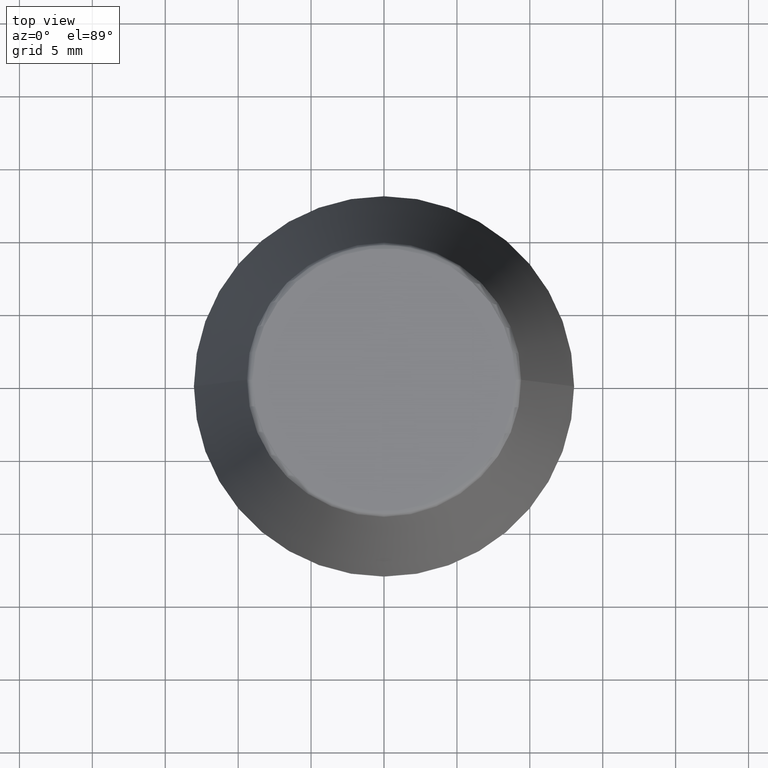
[diagram: clean part render]
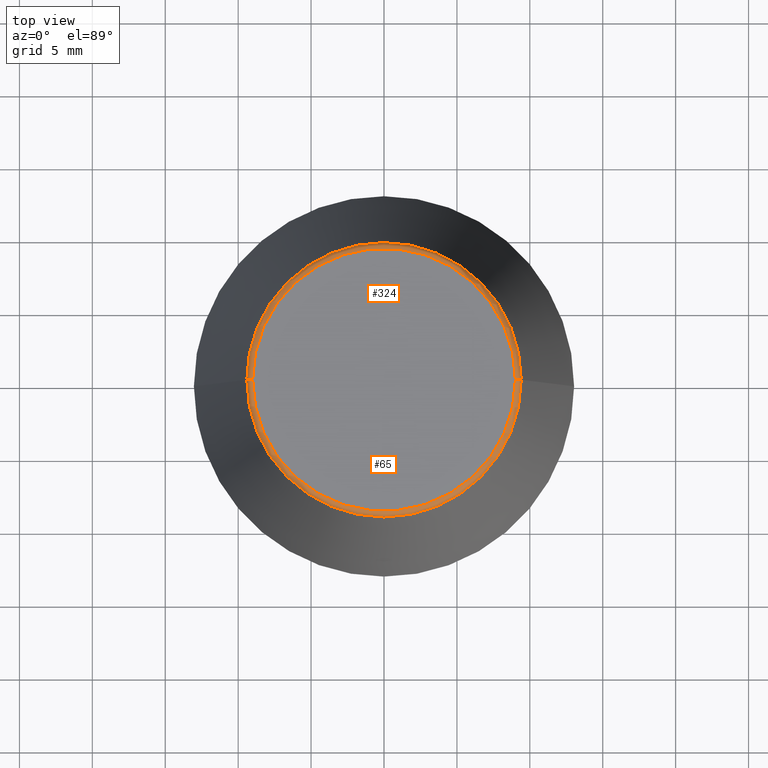
[diagram: same view with one multi-face feature highlighted, each face labeled with its STEP entity id]
A machine part, top view. The highlighted faces form ONE feature: a constant-radius fillet chain: 2 tangent blend faces with common blend radius 0.4 mm. The faces share edges in the B-rep.
Their STEP definitions:
[1] entity #65 (Torus):
#12 = AXIS2_PLACEMENT_3D ( 'NONE', #60, #238, #49 ) ;
#15 = DIRECTION ( 'NONE',  ( 1.000000000000000000, 0.0000000000000000000, 0.0000000000000000000 ) ) ;
#18 = CARTESIAN_POINT ( 'NONE',  ( 9.012603057622234500, 0.0000000000000000000, 33.60000000000000100 ) ) ;
#40 = DIRECTION ( 'NONE',  ( 0.0000000000000000000, 0.0000000000000000000, -1.000000000000000000 ) ) ;
#41 = TOROIDAL_SURFACE ( 'NONE', #184, 9.012603057622234500, 0.4000000000000009700 ) ;
#49 = DIRECTION ( 'NONE',  ( 1.000000000000000000, 0.0000000000000000000, 0.0000000000000000000 ) ) ;
#51 = VERTEX_POINT ( 'NONE', #173 ) ;
#60 = CARTESIAN_POINT ( 'NONE',  ( 0.0000000000000000000, 0.0000000000000000000, 33.65566924038402900 ) ) ;
#65 = ADVANCED_FACE ( 'NONE', ( #91 ), #41, .T. ) ;
#75 = VERTEX_POINT ( 'NONE', #231 ) ;
#79 = VERTEX_POINT ( 'NONE', #140 ) ;
#91 = FACE_OUTER_BOUND ( 'NONE', #236, .T. ) ;
#93 = DIRECTION ( 'NONE',  ( -0.0000000000000000000, -0.0000000000000000000, 1.000000000000000000 ) ) ;
#108 = DIRECTION ( 'NONE',  ( 0.0000000000000000000, -1.000000000000000000, 0.0000000000000000000 ) ) ;
#113 = CARTESIAN_POINT ( 'NONE',  ( 0.0000000000000000000, 0.0000000000000000000, 33.60000000000000100 ) ) ;
#123 = DIRECTION ( 'NONE',  ( 1.000000000000000000, 0.0000000000000000000, 0.0000000000000000000 ) ) ;
#135 = EDGE_CURVE ( 'NONE', #79, #256, #239, .T. ) ;
#140 = CARTESIAN_POINT ( 'NONE',  ( -9.408710285118862900, 0.0000000000000000000, 33.65566924038402900 ) ) ;
#149 = CIRCLE ( 'NONE', #222, 0.3999999999999975800 ) ;
#158 = DIRECTION ( 'NONE',  ( -1.000000000000000000, 1.224646799147353200E-016, 0.0000000000000000000 ) ) ;
#173 = CARTESIAN_POINT ( 'NONE',  ( -9.012603057622234500, 1.127980121063915600E-015, 34.00000000000000000 ) ) ;
#184 = AXIS2_PLACEMENT_3D ( 'NONE', #113, #377, #15 ) ;
#185 = CARTESIAN_POINT ( 'NONE',  ( -9.012603057622234500, 1.103725548650271700E-015, 33.60000000000000100 ) ) ;
#222 = AXIS2_PLACEMENT_3D ( 'NONE', #18, #108, #40 ) ;
#228 = ORIENTED_EDGE ( 'NONE', *, *, #135, .T. ) ;
#231 = CARTESIAN_POINT ( 'NONE',  ( 9.012603057622234500, 0.0000000000000000000, 34.00000000000000000 ) ) ;
#236 = EDGE_LOOP ( 'NONE', ( #312, #228, #286, #303 ) ) ;
#238 = DIRECTION ( 'NONE',  ( -0.0000000000000000000, -0.0000000000000000000, 1.000000000000000000 ) ) ;
#239 = CIRCLE ( 'NONE', #12, 9.408710285118862900 ) ;
#248 = AXIS2_PLACEMENT_3D ( 'NONE', #300, #93, #123 ) ;
#256 = VERTEX_POINT ( 'NONE', #379 ) ;
#260 = EDGE_CURVE ( 'NONE', #256, #75, #149, .T. ) ;
#264 = CIRCLE ( 'NONE', #358, 0.4000000000000010200 ) ;
#286 = ORIENTED_EDGE ( 'NONE', *, *, #260, .T. ) ;
#300 = CARTESIAN_POINT ( 'NONE',  ( 0.0000000000000000000, 0.0000000000000000000, 34.00000000000000000 ) ) ;
#303 = ORIENTED_EDGE ( 'NONE', *, *, #322, .F. ) ;
#312 = ORIENTED_EDGE ( 'NONE', *, *, #369, .F. ) ;
#320 = CIRCLE ( 'NONE', #248, 9.012603057622234500 ) ;
#322 = EDGE_CURVE ( 'NONE', #51, #75, #320, .T. ) ;
#358 = AXIS2_PLACEMENT_3D ( 'NONE', #185, #363, #158 ) ;
#363 = DIRECTION ( 'NONE',  ( 1.224646799147353200E-016, 1.000000000000000000, 0.0000000000000000000 ) ) ;
#369 = EDGE_CURVE ( 'NONE', #79, #51, #264, .T. ) ;
#377 = DIRECTION ( 'NONE',  ( -0.0000000000000000000, -0.0000000000000000000, 1.000000000000000000 ) ) ;
#379 = CARTESIAN_POINT ( 'NONE',  ( 9.408710285118862900, 1.374377508408924700E-015, 33.65566924038402900 ) ) ;
[2] entity #324 (Torus):
#13 = TOROIDAL_SURFACE ( 'NONE', #44, 9.012603057622234500, 0.4000000000000009700 ) ;
#14 = DIRECTION ( 'NONE',  ( -0.0000000000000000000, -0.0000000000000000000, 1.000000000000000000 ) ) ;
#18 = CARTESIAN_POINT ( 'NONE',  ( 9.012603057622234500, 0.0000000000000000000, 33.60000000000000100 ) ) ;
#35 = DIRECTION ( 'NONE',  ( -0.0000000000000000000, -0.0000000000000000000, 1.000000000000000000 ) ) ;
#40 = DIRECTION ( 'NONE',  ( 0.0000000000000000000, 0.0000000000000000000, -1.000000000000000000 ) ) ;
#44 = AXIS2_PLACEMENT_3D ( 'NONE', #331, #14, #242 ) ;
#51 = VERTEX_POINT ( 'NONE', #173 ) ;
#58 = DIRECTION ( 'NONE',  ( 1.000000000000000000, 0.0000000000000000000, 0.0000000000000000000 ) ) ;
#75 = VERTEX_POINT ( 'NONE', #231 ) ;
#79 = VERTEX_POINT ( 'NONE', #140 ) ;
#106 = CARTESIAN_POINT ( 'NONE',  ( 0.0000000000000000000, 0.0000000000000000000, 33.65566924038402900 ) ) ;
#108 = DIRECTION ( 'NONE',  ( 0.0000000000000000000, -1.000000000000000000, 0.0000000000000000000 ) ) ;
#138 = DIRECTION ( 'NONE',  ( 1.000000000000000000, 0.0000000000000000000, 0.0000000000000000000 ) ) ;
#140 = CARTESIAN_POINT ( 'NONE',  ( -9.408710285118862900, 0.0000000000000000000, 33.65566924038402900 ) ) ;
#147 = CARTESIAN_POINT ( 'NONE',  ( 0.0000000000000000000, 0.0000000000000000000, 34.00000000000000000 ) ) ;
#149 = CIRCLE ( 'NONE', #222, 0.3999999999999975800 ) ;
#158 = DIRECTION ( 'NONE',  ( -1.000000000000000000, 1.224646799147353200E-016, 0.0000000000000000000 ) ) ;
#173 = CARTESIAN_POINT ( 'NONE',  ( -9.012603057622234500, 1.127980121063915600E-015, 34.00000000000000000 ) ) ;
#185 = CARTESIAN_POINT ( 'NONE',  ( -9.012603057622234500, 1.103725548650271700E-015, 33.60000000000000100 ) ) ;
#222 = AXIS2_PLACEMENT_3D ( 'NONE', #18, #108, #40 ) ;
#231 = CARTESIAN_POINT ( 'NONE',  ( 9.012603057622234500, 0.0000000000000000000, 34.00000000000000000 ) ) ;
#235 = EDGE_LOOP ( 'NONE', ( #386, #280, #282, #295 ) ) ;
#242 = DIRECTION ( 'NONE',  ( 1.000000000000000000, 0.0000000000000000000, 0.0000000000000000000 ) ) ;
#256 = VERTEX_POINT ( 'NONE', #379 ) ;
#260 = EDGE_CURVE ( 'NONE', #256, #75, #149, .T. ) ;
#264 = CIRCLE ( 'NONE', #358, 0.4000000000000010200 ) ;
#270 = DIRECTION ( 'NONE',  ( -0.0000000000000000000, -0.0000000000000000000, 1.000000000000000000 ) ) ;
#280 = ORIENTED_EDGE ( 'NONE', *, *, #369, .T. ) ;
#282 = ORIENTED_EDGE ( 'NONE', *, *, #302, .F. ) ;
#285 = EDGE_CURVE ( 'NONE', #256, #79, #342, .T. ) ;
#295 = ORIENTED_EDGE ( 'NONE', *, *, #260, .F. ) ;
#302 = EDGE_CURVE ( 'NONE', #75, #51, #387, .T. ) ;
#324 = ADVANCED_FACE ( 'NONE', ( #330 ), #13, .T. ) ;
#330 = FACE_OUTER_BOUND ( 'NONE', #235, .T. ) ;
#331 = CARTESIAN_POINT ( 'NONE',  ( 0.0000000000000000000, 0.0000000000000000000, 33.60000000000000100 ) ) ;
#342 = CIRCLE ( 'NONE', #367, 9.408710285118862900 ) ;
#358 = AXIS2_PLACEMENT_3D ( 'NONE', #185, #363, #158 ) ;
#363 = DIRECTION ( 'NONE',  ( 1.224646799147353200E-016, 1.000000000000000000, 0.0000000000000000000 ) ) ;
#367 = AXIS2_PLACEMENT_3D ( 'NONE', #106, #35, #58 ) ;
#369 = EDGE_CURVE ( 'NONE', #79, #51, #264, .T. ) ;
#379 = CARTESIAN_POINT ( 'NONE',  ( 9.408710285118862900, 1.374377508408924700E-015, 33.65566924038402900 ) ) ;
#384 = AXIS2_PLACEMENT_3D ( 'NONE', #147, #270, #138 ) ;
#386 = ORIENTED_EDGE ( 'NONE', *, *, #285, .T. ) ;
#387 = CIRCLE ( 'NONE', #384, 9.012603057622234500 ) ;